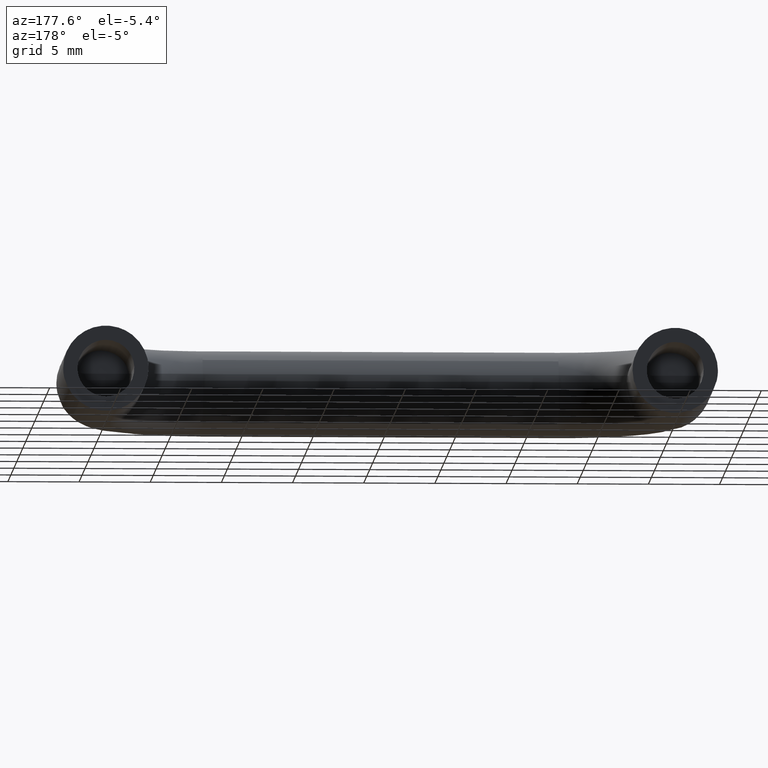
[diagram: clean part render]
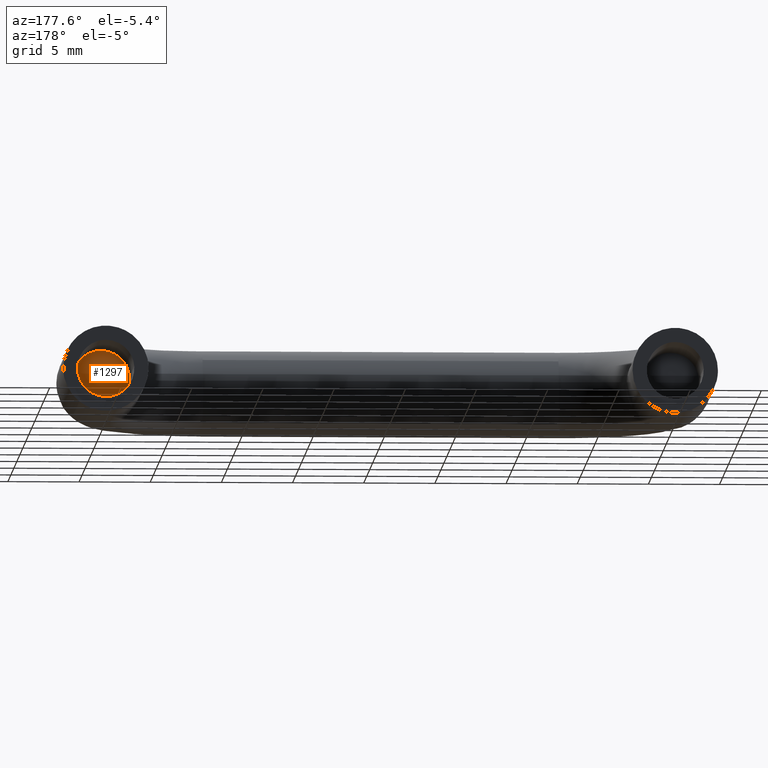
[diagram: same view with one face highlighted and labeled with its STEP entity id]
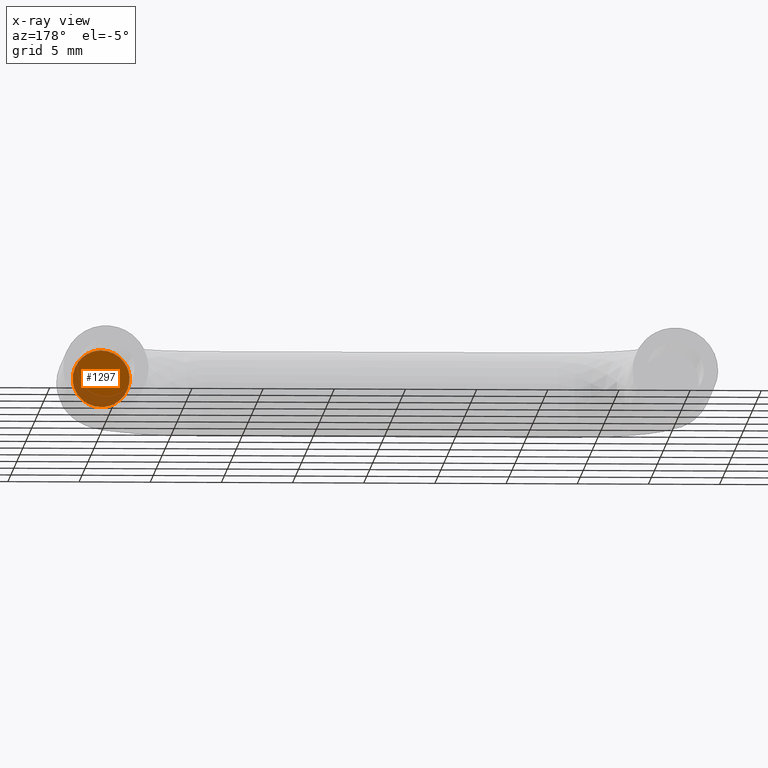
[diagram: x-ray of the same camera — body ghosted, the highlighted face saturated]
A machine part, auxiliary view. The second image highlights one B-rep face of the part: STEP entity #1297.
The next image is the same camera in x-ray: the body ghosted, the highlighted face saturated — about 26% of this face is hidden behind the body in this view.
In plain terms, the highlighted face is a freeform B-spline surface patch.
Its self-contained STEP definition (entity closure, byte-faithful):
#62=CARTESIAN_POINT('',(40.0,-8.0,2.0));
#63=VERTEX_POINT('',#62);
#64=CARTESIAN_POINT('',(38.006165332542729,-8.0,0.156918191569840));
#65=VERTEX_POINT('',#64);
#66=CARTESIAN_POINT('',(40.0,-8.0,2.0));
#67=CARTESIAN_POINT('',(38.151219016895936,-8.0,2.0));
#68=CARTESIAN_POINT('',(38.006165332542729,-8.0,0.156918191569840));
#76=(BOUNDED_CURVE()B_SPLINE_CURVE(2,(#66,#67,#68),.UNSPECIFIED.,.F.,.U.)B_SPLINE_CURVE_WITH_KNOTS((3,3),(0.0,0.236331300613138),.UNSPECIFIED.)CURVE()GEOMETRIC_REPRESENTATION_ITEM()RATIONAL_B_SPLINE_CURVE((1.0,0.723120658628193,0.969723356130852))REPRESENTATION_ITEM(''));
#77=EDGE_CURVE('',#63,#65,#76,.T.);
#118=CARTESIAN_POINT('',(41.993834667457271,-8.0,-0.156918191569839));
#119=VERTEX_POINT('',#118);
#125=CARTESIAN_POINT('',(41.993834667457271,-8.0,-0.156918191569839));
#126=CARTESIAN_POINT('',(42.000000000000007,-8.0,-0.078580214130018));
#127=CARTESIAN_POINT('',(42.0,-8.0,0.0));
#128=CARTESIAN_POINT('',(42.000000000000007,-8.0,2.000000000000000));
#129=CARTESIAN_POINT('',(40.0,-8.0,2.0));
#137=(BOUNDED_CURVE()B_SPLINE_CURVE(2,(#125,#126,#127,#128,#129),.UNSPECIFIED.,.F.,.U.)B_SPLINE_CURVE_WITH_KNOTS((3,2,3),(0.736331300613138,0.750000000000000,1.0),.UNSPECIFIED.)CURVE()GEOMETRIC_REPRESENTATION_ITEM()RATIONAL_B_SPLINE_CURVE((0.969723356130852,0.983986122558355,1.0,0.707106781186548,1.0))REPRESENTATION_ITEM(''));
#138=EDGE_CURVE('',#119,#63,#137,.T.);
#161=CARTESIAN_POINT('',(40.0,-8.0,-2.0));
#162=VERTEX_POINT('',#161);
#163=CARTESIAN_POINT('',(38.006165332542729,-8.0,0.156918191569840));
#164=CARTESIAN_POINT('',(38.0,-8.0,0.078580214130019));
#165=CARTESIAN_POINT('',(38.0,-8.0,0.0));
#166=CARTESIAN_POINT('',(38.0,-8.0,-2.000000000000000));
#167=CARTESIAN_POINT('',(40.0,-8.0,-2.0));
#175=(BOUNDED_CURVE()B_SPLINE_CURVE(2,(#163,#164,#165,#166,#167),.UNSPECIFIED.,.F.,.U.)B_SPLINE_CURVE_WITH_KNOTS((3,2,3),(0.236331300613138,0.250000000000000,0.500000000000000),.UNSPECIFIED.)CURVE()GEOMETRIC_REPRESENTATION_ITEM()RATIONAL_B_SPLINE_CURVE((0.969723356130852,0.983986122558354,1.0,0.707106781186548,1.0))REPRESENTATION_ITEM(''));
#176=EDGE_CURVE('',#65,#162,#175,.T.);
#178=CARTESIAN_POINT('',(40.0,-8.0,-2.0));
#179=CARTESIAN_POINT('',(41.848780983104092,-8.0,-2.000000000000000));
#180=CARTESIAN_POINT('',(41.993834667457271,-8.0,-0.156918191569839));
#188=(BOUNDED_CURVE()B_SPLINE_CURVE(2,(#178,#179,#180),.UNSPECIFIED.,.F.,.U.)B_SPLINE_CURVE_WITH_KNOTS((3,3),(0.500000000000000,0.736331300613140),.UNSPECIFIED.)CURVE()GEOMETRIC_REPRESENTATION_ITEM()RATIONAL_B_SPLINE_CURVE((1.0,0.723120658628192,0.969723356130855))REPRESENTATION_ITEM(''));
#189=EDGE_CURVE('',#162,#119,#188,.T.);
#1286=CARTESIAN_POINT('',(37.800808381148073,-8.0,2.199799992247224));
#1287=CARTESIAN_POINT('',(42.199191511563583,-8.0,2.199799992247224));
#1288=CARTESIAN_POINT('',(37.800808381148073,-8.0,-2.199800099535584));
#1289=CARTESIAN_POINT('',(42.199191511563583,-8.0,-2.199800099535584));
#1290=B_SPLINE_SURFACE_WITH_KNOTS('',1,1,((#1286,#1288),(#1287,#1289)),.UNSPECIFIED.,.F.,.F.,.U.,(2,2),(2,2),(0.0,4.398383130415510),(0.0,4.399600091782808),.UNSPECIFIED.);
#1291=ORIENTED_EDGE('',*,*,#138,.F.);
#1292=ORIENTED_EDGE('',*,*,#189,.F.);
#1293=ORIENTED_EDGE('',*,*,#176,.F.);
#1294=ORIENTED_EDGE('',*,*,#77,.F.);
#1295=EDGE_LOOP('',(#1291,#1292,#1293,#1294));
#1296=FACE_OUTER_BOUND('',#1295,.T.);
#1297=ADVANCED_FACE('',(#1296),#1290,.T.);